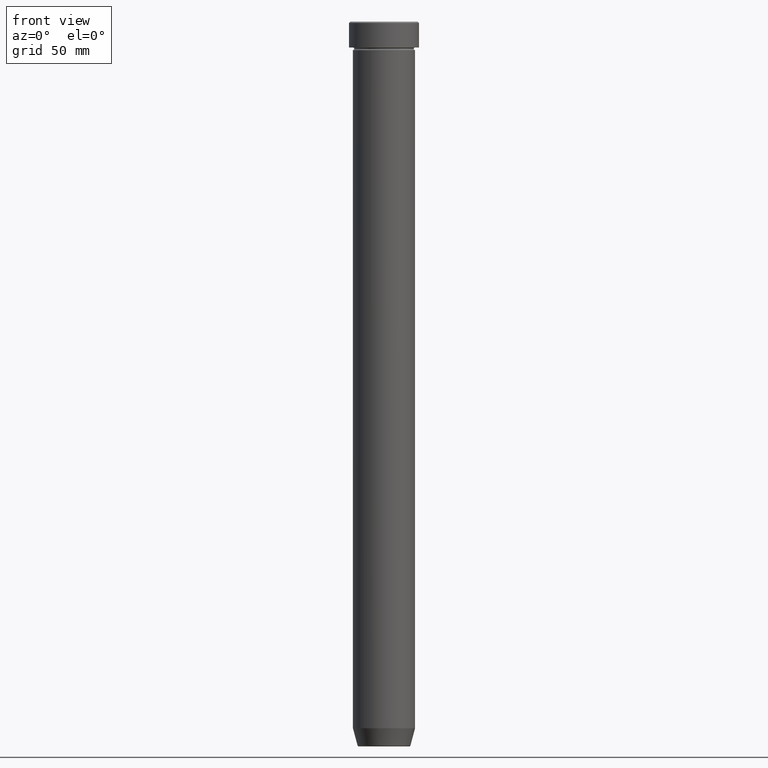
[diagram: clean part render]
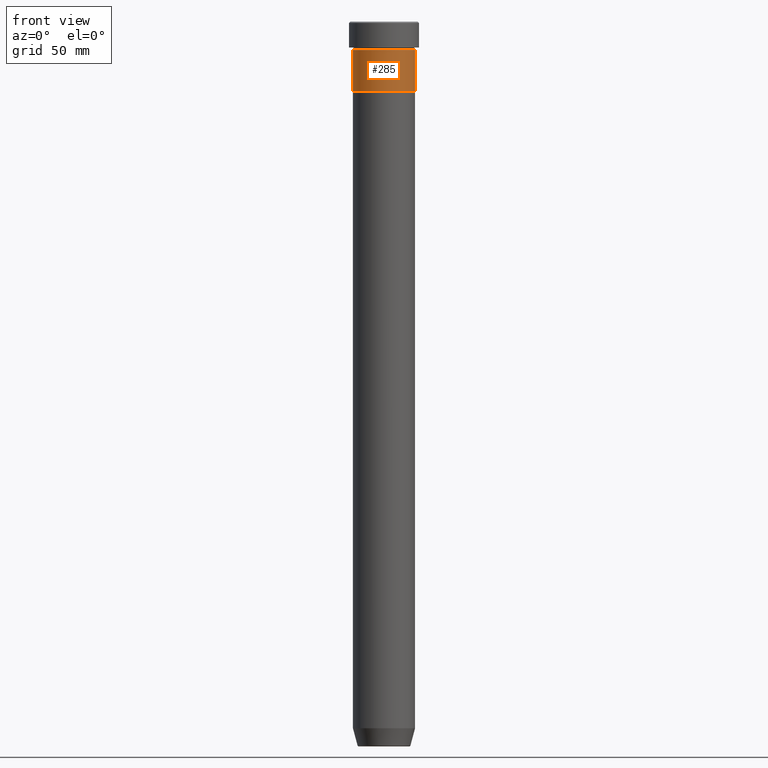
[diagram: same view with one face highlighted and labeled with its STEP entity id]
A machine part, front view. The second image highlights one B-rep face of the part: STEP entity #285.
In plain terms, the highlighted cylindrical surface (edge-blend (fillet) strip) has radius 12 mm, axis along (-0, -0, 1).
Its self-contained STEP definition (entity closure, byte-faithful):
#18 = DIRECTION ( 'NONE',  ( 1.000000000000000000, 0.000000000000000000, 0.000000000000000000 ) ) ;
#34 = VERTEX_POINT ( 'NONE', #300 ) ;
#52 = AXIS2_PLACEMENT_3D ( 'NONE', #149, #424, #333 ) ;
#68 = FACE_OUTER_BOUND ( 'NONE', #240, .T. ) ;
#93 = VERTEX_POINT ( 'NONE', #478 ) ;
#106 = VERTEX_POINT ( 'NONE', #304 ) ;
#149 = CARTESIAN_POINT ( 'NONE',  ( 0.000000000000000000, 0.000000000000000000, 0.000000000000000000 ) ) ;
#168 = LINE ( 'NONE', #536, #183 ) ;
#183 = VECTOR ( 'NONE', #375, 1000.000000000000000 ) ;
#186 = CARTESIAN_POINT ( 'NONE',  ( -12.00000000000000000, 1.469576158976823947E-15, -11.00000000000000000 ) ) ;
#223 = AXIS2_PLACEMENT_3D ( 'NONE', #388, #571, #18 ) ;
#224 = ORIENTED_EDGE ( 'NONE', *, *, #585, .F. ) ;
#240 = EDGE_LOOP ( 'NONE', ( #291, #565, #538, #224 ) ) ;
#244 = CARTESIAN_POINT ( 'NONE',  ( 0.000000000000000000, 0.000000000000000000, -27.00000000000000000 ) ) ;
#266 = EDGE_CURVE ( 'NONE', #93, #106, #534, .T. ) ;
#284 = VERTEX_POINT ( 'NONE', #186 ) ;
#285 = ADVANCED_FACE ( 'NONE', ( #68 ), #521, .T. ) ;
#291 = ORIENTED_EDGE ( 'NONE', *, *, #448, .F. ) ;
#300 = CARTESIAN_POINT ( 'NONE',  ( 12.00000000000000000, 0.000000000000000000, -11.00000000000000000 ) ) ;
#304 = CARTESIAN_POINT ( 'NONE',  ( 12.00000000000000000, 0.000000000000000000, -27.00000000000000000 ) ) ;
#311 = AXIS2_PLACEMENT_3D ( 'NONE', #244, #373, #558 ) ;
#333 = DIRECTION ( 'NONE',  ( 1.000000000000000000, 0.000000000000000000, 0.000000000000000000 ) ) ;
#361 = LINE ( 'NONE', #451, #528 ) ;
#368 = EDGE_CURVE ( 'NONE', #106, #34, #361, .T. ) ;
#373 = DIRECTION ( 'NONE',  ( -0.000000000000000000, -0.000000000000000000, 1.000000000000000000 ) ) ;
#375 = DIRECTION ( 'NONE',  ( -0.000000000000000000, -0.000000000000000000, 1.000000000000000000 ) ) ;
#388 = CARTESIAN_POINT ( 'NONE',  ( 0.000000000000000000, 0.000000000000000000, -11.00000000000000000 ) ) ;
#424 = DIRECTION ( 'NONE',  ( -0.000000000000000000, -0.000000000000000000, 1.000000000000000000 ) ) ;
#426 = CIRCLE ( 'NONE', #223, 12.00000000000000000 ) ;
#448 = EDGE_CURVE ( 'NONE', #93, #284, #168, .T. ) ;
#451 = CARTESIAN_POINT ( 'NONE',  ( 12.00000000000000000, 0.000000000000000000, 0.000000000000000000 ) ) ;
#478 = CARTESIAN_POINT ( 'NONE',  ( -12.00000000000000000, 1.469576158976823947E-15, -27.00000000000000000 ) ) ;
#521 = CYLINDRICAL_SURFACE ( 'NONE', #52, 12.00000000000000000 ) ;
#528 = VECTOR ( 'NONE', #588, 1000.000000000000000 ) ;
#534 = CIRCLE ( 'NONE', #311, 12.00000000000000000 ) ;
#536 = CARTESIAN_POINT ( 'NONE',  ( -12.00000000000000000, 1.469576158976823947E-15, 0.000000000000000000 ) ) ;
#538 = ORIENTED_EDGE ( 'NONE', *, *, #368, .T. ) ;
#558 = DIRECTION ( 'NONE',  ( 1.000000000000000000, 0.000000000000000000, 0.000000000000000000 ) ) ;
#565 = ORIENTED_EDGE ( 'NONE', *, *, #266, .T. ) ;
#571 = DIRECTION ( 'NONE',  ( -0.000000000000000000, -0.000000000000000000, 1.000000000000000000 ) ) ;
#585 = EDGE_CURVE ( 'NONE', #284, #34, #426, .T. ) ;
#588 = DIRECTION ( 'NONE',  ( -0.000000000000000000, -0.000000000000000000, 1.000000000000000000 ) ) ;